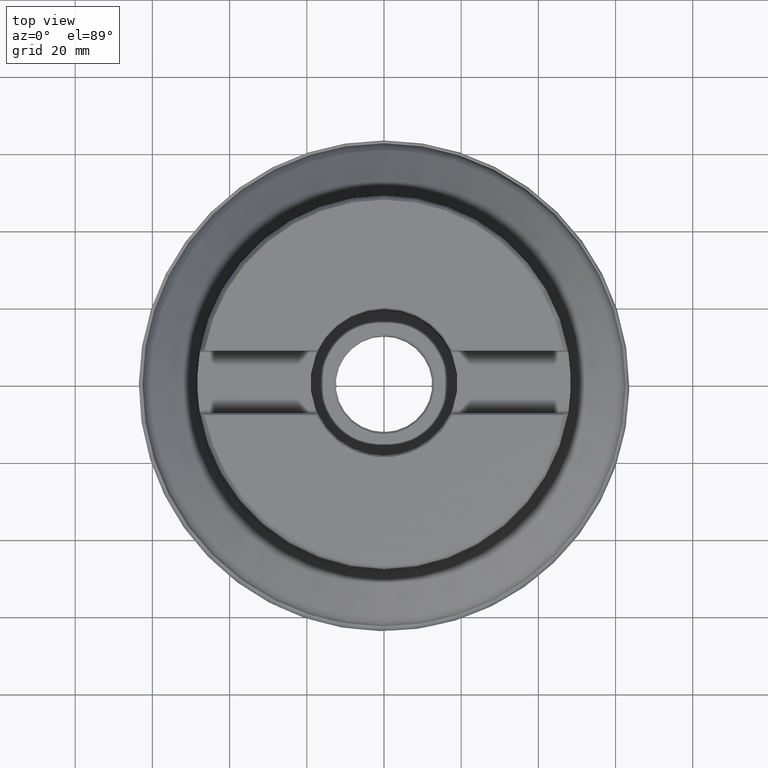
[diagram: clean part render]
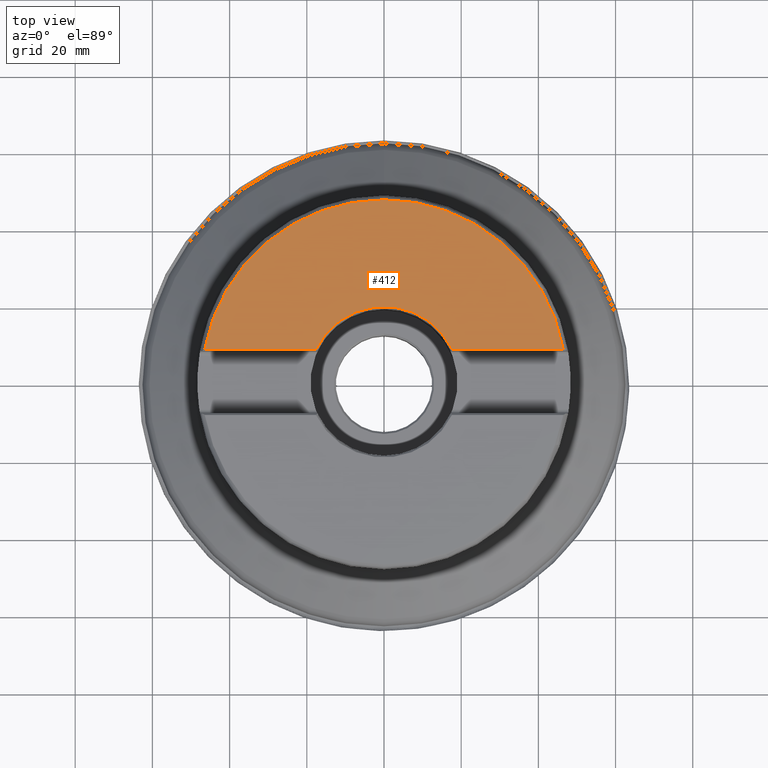
[diagram: same view with one face highlighted and labeled with its STEP entity id]
A machine part, top view. The second image highlights one B-rep face of the part: STEP entity #412.
In plain terms, the highlighted planar face has unit normal (0, 0, 1).
Its self-contained STEP definition (entity closure, byte-faithful):
#302=PLANE('',#1293);
#307=LINE('',#1948,#334);
#309=LINE('',#1962,#336);
#334=VECTOR('',#1332,1.);
#336=VECTOR('',#1344,1.);
#412=ADVANCED_FACE('',(#473),#302,.T.);
#473=FACE_OUTER_BOUND('',#555,.T.);
#555=EDGE_LOOP('',(#857,#858,#859,#860));
#604=CIRCLE('',#1195,47.2217797887081);
#608=CIRCLE('',#1203,19.5603329049263);
#857=ORIENTED_EDGE('',*,*,#1007,.F.);
#858=ORIENTED_EDGE('',*,*,#1019,.F.);
#859=ORIENTED_EDGE('',*,*,#1023,.F.);
#860=ORIENTED_EDGE('',*,*,#1025,.F.);
#910=VERTEX_POINT('',#1858);
#911=VERTEX_POINT('',#1860);
#921=VERTEX_POINT('',#1946);
#924=VERTEX_POINT('',#1957);
#1007=EDGE_CURVE('',#910,#911,#604,.T.);
#1019=EDGE_CURVE('',#921,#910,#307,.T.);
#1023=EDGE_CURVE('',#924,#921,#608,.T.);
#1025=EDGE_CURVE('',#911,#924,#309,.T.);
#1195=AXIS2_PLACEMENT_3D('',#1859,#1320,#1321);
#1203=AXIS2_PLACEMENT_3D('',#1959,#1338,#1339);
#1293=AXIS2_PLACEMENT_3D('',#2297,#1540,#1541);
#1320=DIRECTION('',(0.,-1.17145536458252E-15,-1.));
#1321=DIRECTION('',(0.,-1.,1.17554127522597E-15));
#1332=DIRECTION('',(-1.,-1.08268785724004E-15,1.26832049853221E-30));
#1338=DIRECTION('',(0.,1.17145536458252E-15,1.));
#1339=DIRECTION('',(0.,-1.,1.06422941843076E-15));
#1344=DIRECTION('',(-1.,-1.08268785724004E-15,1.26832049853221E-30));
#1540=DIRECTION('',(0.,1.17145536458252E-15,1.));
#1541=DIRECTION('',(0.,-1.,1.17267306976032E-15));
#1858=CARTESIAN_POINT('',(-46.4431360527387,8.54000000000004,60.325));
#1859=CARTESIAN_POINT('',(0.,7.06680448684408E-14,60.325));
#1860=CARTESIAN_POINT('',(46.4431360527375,8.54000000000014,60.325));
#1946=CARTESIAN_POINT('',(-17.5975857250801,8.54000000000007,60.325));
#1948=CARTESIAN_POINT('',(-67.,8.54000000000002,60.325));
#1957=CARTESIAN_POINT('',(17.5975857250801,8.54000000000011,60.325));
#1959=CARTESIAN_POINT('',(2.5277516345712E-14,8.27696633916358E-14,60.325));
#1962=CARTESIAN_POINT('',(-67.,8.54000000000002,60.325));
#2297=CARTESIAN_POINT('',(0.,7.06680448684408E-14,60.325));